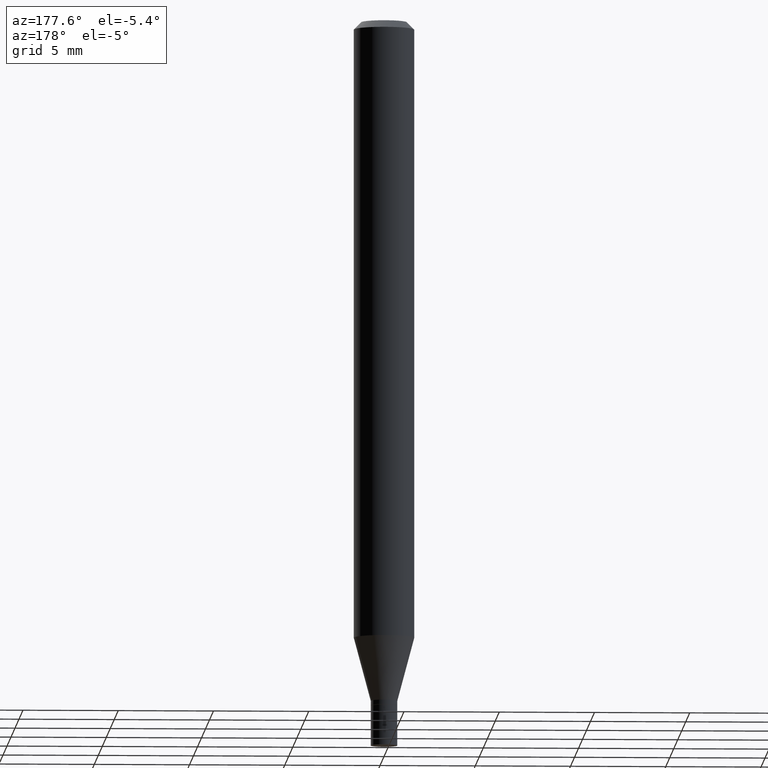
[diagram: clean part render]
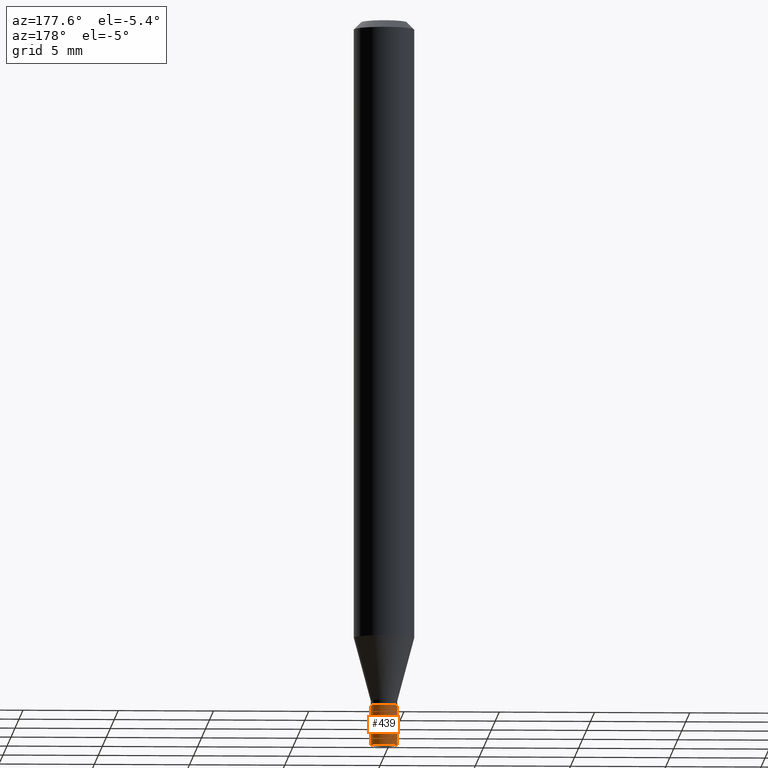
[diagram: same view with one face highlighted and labeled with its STEP entity id]
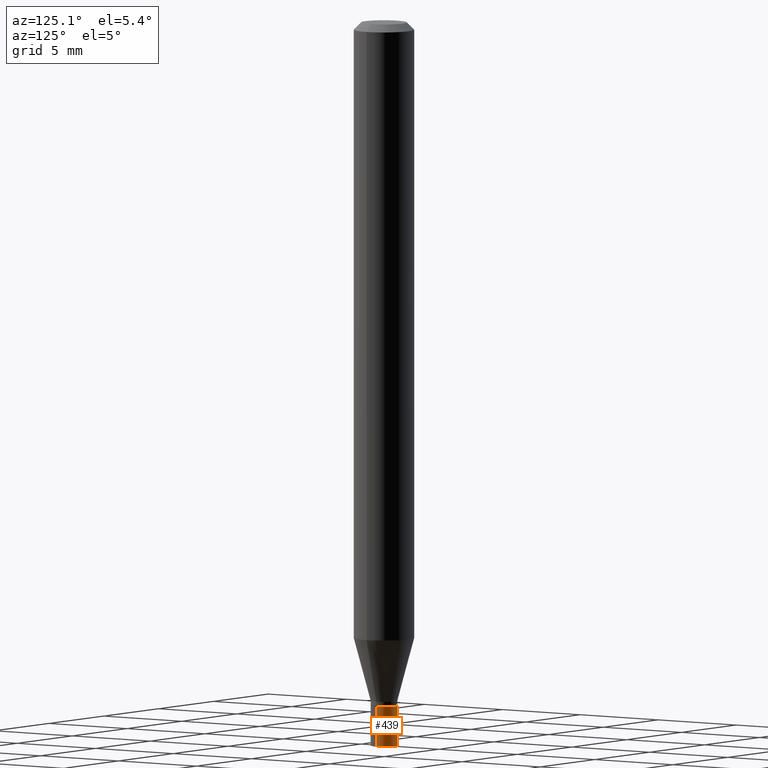
[diagram: same view with one face highlighted and labeled with its STEP entity id]
A machine part, auxiliary view. The second image highlights one B-rep face of the part: STEP entity #439.
A second angle (auxiliary view) of the same face is appended — the face is thin or edge-on in the first view.
In plain terms, the highlighted cylindrical surface (edge-blend (fillet) strip) has radius 0.6985 mm, axis along (-0, 0, 1).
Its self-contained STEP definition (entity closure, byte-faithful):
#11 = VERTEX_POINT ( 'NONE', #342 ) ;
#23 = CARTESIAN_POINT ( 'NONE',  ( 0.000000000000000000, 0.000000000000000000, 0.000000000000000000 ) ) ;
#36 = CIRCLE ( 'NONE', #346, 0.02750000000000000014 ) ;
#51 = EDGE_CURVE ( 'NONE', #94, #11, #36, .T. ) ;
#61 = ORIENTED_EDGE ( 'NONE', *, *, #229, .T. ) ;
#65 = VECTOR ( 'NONE', #369, 39.37007874015748143 ) ;
#94 = VERTEX_POINT ( 'NONE', #303 ) ;
#112 = DIRECTION ( 'NONE',  ( 1.000000000000000000, -6.982962677686266711E-15, 4.876176775795935793E-29 ) ) ;
#121 = CYLINDRICAL_SURFACE ( 'NONE', #286, 0.02750000000000000014 ) ;
#124 = DIRECTION ( 'NONE',  ( -2.445468806185136597E-29, 3.491481338843145583E-15, 1.000000000000000000 ) ) ;
#157 = VECTOR ( 'NONE', #199, 39.37007874015748143 ) ;
#167 = EDGE_CURVE ( 'NONE', #415, #94, #387, .T. ) ;
#168 = CARTESIAN_POINT ( 'NONE',  ( -0.02750000000000000014, 1.953992523340275521E-16, -1.352707149820099181E-30 ) ) ;
#189 = DIRECTION ( 'NONE',  ( 1.000000000000000000, -6.982962677686279332E-15, 0.000000000000000000 ) ) ;
#190 = EDGE_LOOP ( 'NONE', ( #446, #61, #228, #334 ) ) ;
#199 = DIRECTION ( 'NONE',  ( -2.445468806185136877E-29, 3.491481338843145188E-15, 1.000000000000000000 ) ) ;
#202 = VERTEX_POINT ( 'NONE', #217 ) ;
#217 = CARTESIAN_POINT ( 'NONE',  ( -0.02750000000000000014, -4.896926280368699739E-15, -1.500000000000000222 ) ) ;
#219 = LINE ( 'NONE', #168, #65 ) ;
#228 = ORIENTED_EDGE ( 'NONE', *, *, #51, .F. ) ;
#229 = EDGE_CURVE ( 'NONE', #202, #11, #219, .T. ) ;
#234 = AXIS2_PLACEMENT_3D ( 'NONE', #343, #124, #189 ) ;
#260 = CIRCLE ( 'NONE', #234, 0.02750000000000000014 ) ;
#286 = AXIS2_PLACEMENT_3D ( 'NONE', #23, #453, #112 ) ;
#303 = CARTESIAN_POINT ( 'NONE',  ( 0.02750000000000000014, -5.139460530777110821E-15, -1.417000000000000259 ) ) ;
#316 = CARTESIAN_POINT ( 'NONE',  ( 3.465229298364339647E-29, -4.947429057140738329E-15, -1.417000000000000259 ) ) ;
#334 = ORIENTED_EDGE ( 'NONE', *, *, #167, .F. ) ;
#342 = CARTESIAN_POINT ( 'NONE',  ( -0.02750000000000000014, -4.896926280368699739E-15, -1.417000000000000259 ) ) ;
#343 = CARTESIAN_POINT ( 'NONE',  ( 3.668203209277704895E-29, -5.237222008264718177E-15, -1.500000000000000222 ) ) ;
#346 = AXIS2_PLACEMENT_3D ( 'NONE', #316, #399, #359 ) ;
#359 = DIRECTION ( 'NONE',  ( 1.000000000000000000, -6.982962677686279332E-15, 0.000000000000000000 ) ) ;
#369 = DIRECTION ( 'NONE',  ( -2.445468806185136877E-29, 3.491481338843145188E-15, 1.000000000000000000 ) ) ;
#377 = CARTESIAN_POINT ( 'NONE',  ( 0.02750000000000000014, -5.429253481901091458E-15, -1.500000000000000222 ) ) ;
#387 = LINE ( 'NONE', #458, #157 ) ;
#399 = DIRECTION ( 'NONE',  ( -2.445468806185136597E-29, 3.491481338843145583E-15, 1.000000000000000000 ) ) ;
#414 = EDGE_CURVE ( 'NONE', #415, #202, #260, .T. ) ;
#415 = VERTEX_POINT ( 'NONE', #377 ) ;
#439 = ADVANCED_FACE ( 'NONE', ( #457 ), #121, .T. ) ;
#446 = ORIENTED_EDGE ( 'NONE', *, *, #414, .T. ) ;
#453 = DIRECTION ( 'NONE',  ( -2.445468806185136597E-29, 3.491481338843145583E-15, 1.000000000000000000 ) ) ;
#457 = FACE_OUTER_BOUND ( 'NONE', #190, .T. ) ;
#458 = CARTESIAN_POINT ( 'NONE',  ( 0.02750000000000000014, -1.920314736363723444E-16, 1.340948613343882413E-30 ) ) ;